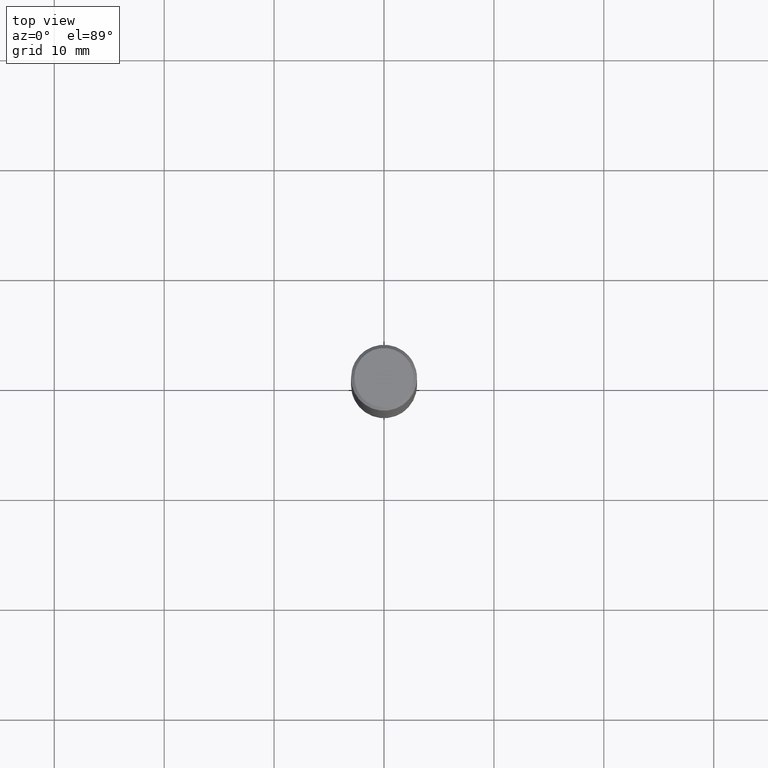
[diagram: clean part render]
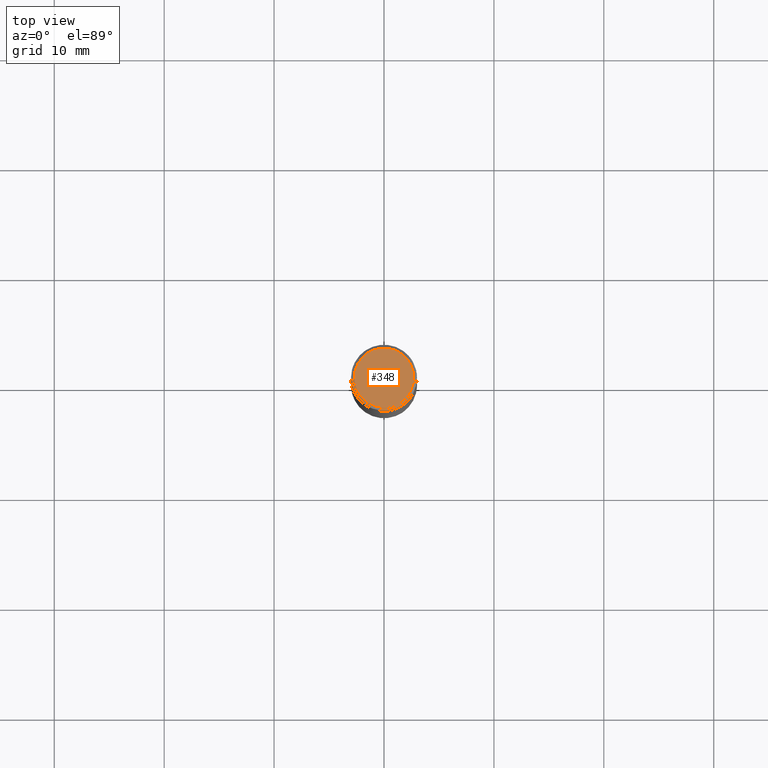
[diagram: same view with one face highlighted and labeled with its STEP entity id]
A machine part, top view. The second image highlights one B-rep face of the part: STEP entity #348.
In plain terms, the highlighted planar face has unit normal (-0, -0, 1).
Its self-contained STEP definition (entity closure, byte-faithful):
#308 = VERTEX_POINT('', #309);
#309 = CARTESIAN_POINT('', (-2.7, 1.65327317884893E-16, 0.));
#315 = EDGE_CURVE('', #308, #308, #316, .T.);
#316 = CIRCLE('', #317, 2.7);
#317 = AXIS2_PLACEMENT_3D('', #318, #319, #320);
#318 = CARTESIAN_POINT('', (6.74700668366753E-80, -4.13135006948962E-96, 0.));
#319 = DIRECTION('', (3.74939945665464E-33, 6.12323399573677E-17, -1.));
#320 = DIRECTION('', (-1., 6.12323399573677E-17, 0.));
#348 = ADVANCED_FACE('', (#349), #352, .T.);
#349 = FACE_OUTER_BOUND('', #350, .T.);
#350 = EDGE_LOOP('', (#351));
#351 = ORIENTED_EDGE('', *, *, #315, .F.);
#352 = PLANE('', #353);
#353 = AXIS2_PLACEMENT_3D('', #354, #355, #356);
#354 = CARTESIAN_POINT('', (4.20021428024809, -4.20021428024809, 1.07962619604318E-14));
#355 = DIRECTION('', (-2.63163976207445E-15, -6.12323399573677E-17, 1.));
#356 = DIRECTION('', (0., 1., 6.12323399573677E-17));